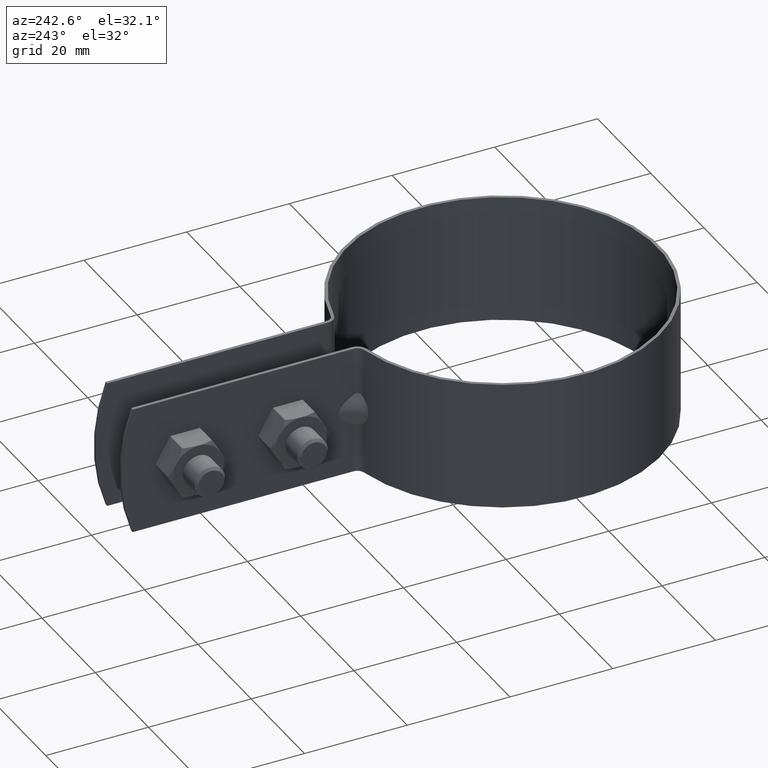
[diagram: clean part render]
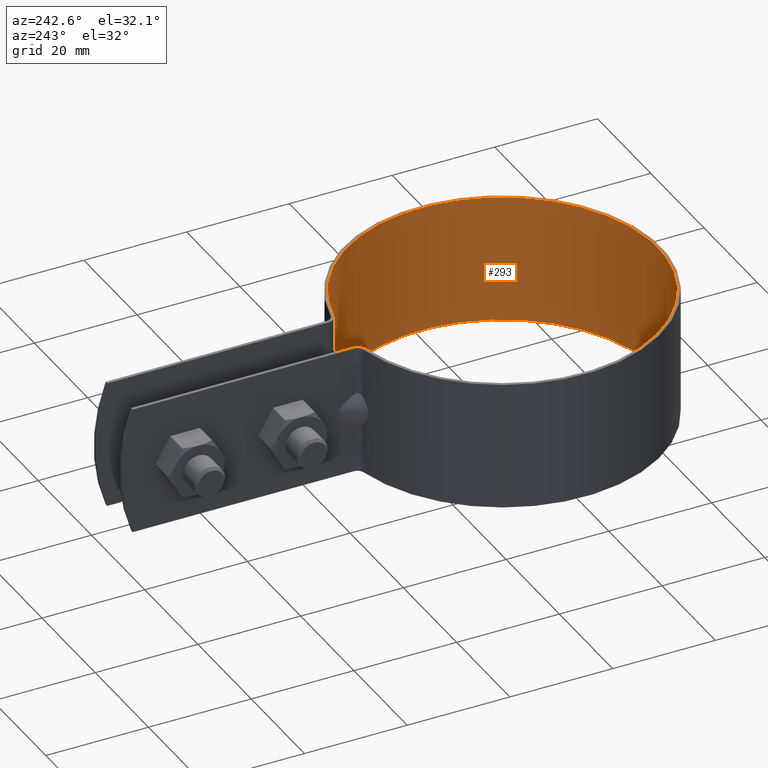
[diagram: same view with one face highlighted and labeled with its STEP entity id]
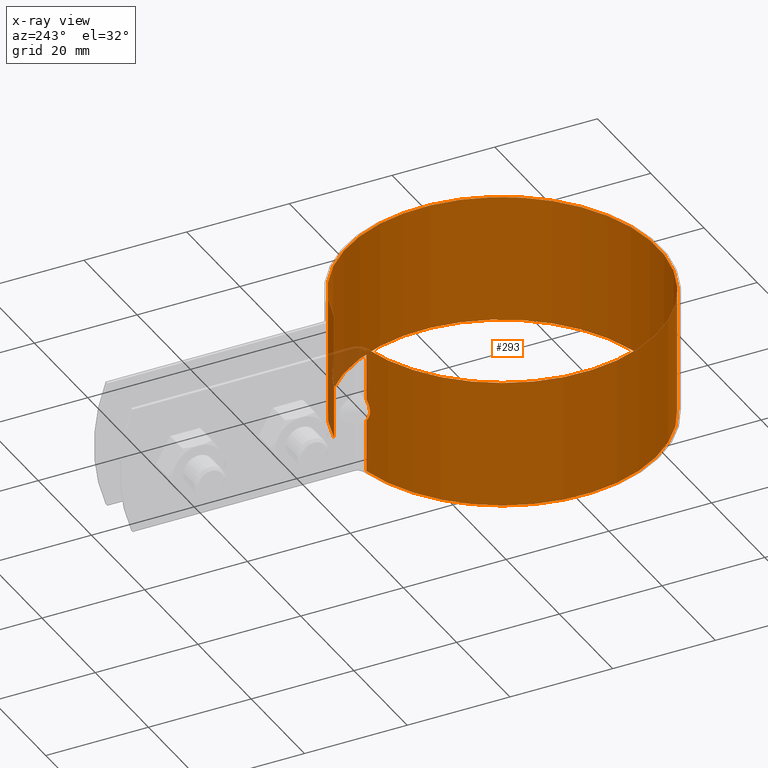
[diagram: x-ray of the same camera — body ghosted, the highlighted face saturated]
A machine part, auxiliary view. The second image highlights one B-rep face of the part: STEP entity #293.
The next image is the same camera in x-ray: the body ghosted, the highlighted face saturated — about 1% of this face is hidden behind the body in this view.
In plain terms, the highlighted cylindrical surface (partial cylindrical patch) has radius 30.25 mm, axis along (0, 0, -1).
Its self-contained STEP definition (entity closure, byte-faithful):
#293 = ADVANCED_FACE( '', ( #432 ), #433, .F. );
#432 = FACE_OUTER_BOUND( '', #664, .T. );
#433 = CYLINDRICAL_SURFACE( '', #665, 30.2500000000000 );
#664 = EDGE_LOOP( '', ( #1042, #1043, #1044, #1045, #1046, #1047, #1048, #1049, #1050, #1051, #1052, #1053 ) );
#665 = AXIS2_PLACEMENT_3D( '', #1054, #1055, #1056 );
#1042 = ORIENTED_EDGE( '', *, *, #1658, .F. );
#1043 = ORIENTED_EDGE( '', *, *, #1619, .F. );
#1044 = ORIENTED_EDGE( '', *, *, #1629, .F. );
#1045 = ORIENTED_EDGE( '', *, *, #1699, .T. );
#1046 = ORIENTED_EDGE( '', *, *, #1668, .T. );
#1047 = ORIENTED_EDGE( '', *, *, #1671, .T. );
#1048 = ORIENTED_EDGE( '', *, *, #1663, .T. );
#1049 = ORIENTED_EDGE( '', *, *, #1700, .T. );
#1050 = ORIENTED_EDGE( '', *, *, #1701, .T. );
#1051 = ORIENTED_EDGE( '', *, *, #1697, .F. );
#1052 = ORIENTED_EDGE( '', *, *, #1655, .F. );
#1053 = ORIENTED_EDGE( '', *, *, #1661, .F. );
#1054 = CARTESIAN_POINT( '', ( 0.000000000000000, 0.000000000000000, -12.5000000000000 ) );
#1055 = DIRECTION( '', ( 0.000000000000000, 0.000000000000000, -1.00000000000000 ) );
#1056 = DIRECTION( '', ( -1.00000000000000, 6.06692130572647E-017, 0.000000000000000 ) );
#1619 = EDGE_CURVE( '', #1859, #1855, #1861, .T. );
#1629 = EDGE_CURVE( '', #1879, #1859, #1881, .T. );
#1655 = EDGE_CURVE( '', #1923, #1926, #1927, .F. );
#1658 = EDGE_CURVE( '', #1855, #1931, #1932, .F. );
#1661 = EDGE_CURVE( '', #1931, #1923, #1936, .T. );
#1663 = EDGE_CURVE( '', #1938, #1939, #1940, .F. );
#1668 = EDGE_CURVE( '', #1949, #1946, #1950, .F. );
#1671 = EDGE_CURVE( '', #1946, #1938, #1954, .T. );
#1697 = EDGE_CURVE( '', #1926, #1996, #1997, .T. );
#1699 = EDGE_CURVE( '', #1879, #1949, #1999, .T. );
#1700 = EDGE_CURVE( '', #1939, #2000, #2001, .T. );
#1701 = EDGE_CURVE( '', #2000, #1996, #2002, .T. );
#1855 = VERTEX_POINT( '', #2255 );
#1859 = VERTEX_POINT( '', #2260 );
#1861 = LINE( '', #2262, #2263 );
#1879 = VERTEX_POINT( '', #2286 );
#1881 = CIRCLE( '', #2288, 30.2500000000000 );
#1923 = VERTEX_POINT( '', #2372 );
#1926 = VERTEX_POINT( '', #2376 );
#1927 = ELLIPSE( '', #2377, 52.7392655675382, 30.2500000000000 );
#1931 = VERTEX_POINT( '', #2382 );
#1932 = ELLIPSE( '', #2383, 52.7392655675382, 30.2500000000000 );
#1936 = B_SPLINE_CURVE_WITH_KNOTS( '', 3, ( #2389, #2390, #2391, #2392, #2393, #2394, #2395, #2396, #2397, #2398, #2399, #2400, #2401, #2402 ), .UNSPECIFIED., .F., .F., ( 4, 2, 2, 2, 2, 2, 4 ), ( 4.51215715110212E-018, 0.00107279046505789, 0.00160918569758683, 0.00214558093011578, 0.00268197616264472, 0.00321837139517366, 0.00429116186023155 ), .UNSPECIFIED. );
#1938 = VERTEX_POINT( '', #2404 );
#1939 = VERTEX_POINT( '', #2405 );
#1940 = ELLIPSE( '', #2406, 52.7392655675382, 30.2500000000000 );
#1946 = VERTEX_POINT( '', #2414 );
#1949 = VERTEX_POINT( '', #2418 );
#1950 = ELLIPSE( '', #2419, 52.7392655675382, 30.2500000000000 );
#1954 = B_SPLINE_CURVE_WITH_KNOTS( '', 3, ( #2424, #2425, #2426, #2427, #2428, #2429, #2430, #2431, #2432, #2433, #2434, #2435, #2436, #2437 ), .UNSPECIFIED., .F., .F., ( 4, 2, 2, 2, 2, 2, 4 ), ( 4.51215715110212E-018, 0.00107279046505789, 0.00160918569758683, 0.00214558093011578, 0.00268197616264472, 0.00321837139517366, 0.00429116186023155 ), .UNSPECIFIED. );
#1996 = VERTEX_POINT( '', #2489 );
#1997 = LINE( '', #2490, #2491 );
#1999 = LINE( '', #2493, #2494 );
#2000 = VERTEX_POINT( '', #2495 );
#2001 = LINE( '', #2496, #2497 );
#2002 = CIRCLE( '', #2498, 30.2500000000000 );
#2255 = CARTESIAN_POINT( '', ( 6.09689922480621, 29.6292139592423, -2.10468024544602 ) );
#2260 = CARTESIAN_POINT( '', ( 6.09689922480621, 29.6292139592423, -12.5000000000000 ) );
#2262 = CARTESIAN_POINT( '', ( 6.09689922480621, 29.6292139592423, -12.5000000000000 ) );
#2263 = VECTOR( '', #2953, 1000.00000000000 );
#2286 = CARTESIAN_POINT( '', ( -6.09689922480620, 29.6292139592423, -12.5000000000000 ) );
#2288 = AXIS2_PLACEMENT_3D( '', #2971, #2972, #2973 );
#2372 = CARTESIAN_POINT( '', ( 6.23273864625334, 29.6009369609731, 1.95015988359352 ) );
#2376 = CARTESIAN_POINT( '', ( 6.09689922480621, 29.6292139592423, 2.10468024544595 ) );
#2377 = AXIS2_PLACEMENT_3D( '', #3017, #3018, #3019 );
#2382 = CARTESIAN_POINT( '', ( 6.23273864625333, 29.6009369609730, -1.95015988359357 ) );
#2383 = AXIS2_PLACEMENT_3D( '', #3024, #3025, #3026 );
#2389 = CARTESIAN_POINT( '', ( 6.23273864625336, 29.6009369609730, -1.95015988359358 ) );
#2390 = CARTESIAN_POINT( '', ( 6.46945246368366, 29.5510947765873, -1.68126006857596 ) );
#2391 = CARTESIAN_POINT( '', ( 6.66342274021514, 29.5073060485315, -1.38135406812216 ) );
#2392 = CARTESIAN_POINT( '', ( 6.86915528258810, 29.4598397639536, -0.882539563165482 ) );
#2393 = CARTESIAN_POINT( '', ( 6.92158780289351, 29.4475035263022, -0.712325264936519 ) );
#2394 = CARTESIAN_POINT( '', ( 6.99288092056508, 29.4306550738433, -0.363666695912886 ) );
#2395 = CARTESIAN_POINT( '', ( 7.01171857601597, 29.4261499801344, -0.183286719302342 ) );
#2396 = CARTESIAN_POINT( '', ( 7.01212016438376, 29.4260542860040, 0.177359188099024 ) );
#2397 = CARTESIAN_POINT( '', ( 6.99410284721404, 29.4303643324806, 0.355142293771740 ) );
#2398 = CARTESIAN_POINT( '', ( 6.92340462671294, 29.4470760476276, 0.705882173023555 ) );
#2399 = CARTESIAN_POINT( '', ( 6.86991102798335, 29.4596621363406, 0.880143481340352 ) );
#2400 = CARTESIAN_POINT( '', ( 6.66590101153241, 29.5067406973973, 1.37645639252584 ) );
#2401 = CARTESIAN_POINT( '', ( 6.46973845000675, 29.5510345596418, 1.68093519666851 ) );
#2402 = CARTESIAN_POINT( '', ( 6.23273864625335, 29.6009369609730, 1.95015988359353 ) );
#2404 = CARTESIAN_POINT( '', ( -6.23273864625334, 29.6009369609731, 1.95015988359352 ) );
#2405 = CARTESIAN_POINT( '', ( -6.09689922480620, 29.6292139592423, 2.10468024544596 ) );
#2406 = AXIS2_PLACEMENT_3D( '', #3032, #3033, #3034 );
#2414 = CARTESIAN_POINT( '', ( -6.23273864625333, 29.6009369609730, -1.95015988359357 ) );
#2418 = CARTESIAN_POINT( '', ( -6.09689922480621, 29.6292139592423, -2.10468024544602 ) );
#2419 = AXIS2_PLACEMENT_3D( '', #3041, #3042, #3043 );
#2424 = CARTESIAN_POINT( '', ( -6.23273864625336, 29.6009369609730, -1.95015988359358 ) );
#2425 = CARTESIAN_POINT( '', ( -6.46945246368366, 29.5510947765873, -1.68126006857596 ) );
#2426 = CARTESIAN_POINT( '', ( -6.66342274021514, 29.5073060485315, -1.38135406812216 ) );
#2427 = CARTESIAN_POINT( '', ( -6.86915528258810, 29.4598397639536, -0.882539563165482 ) );
#2428 = CARTESIAN_POINT( '', ( -6.92158780289351, 29.4475035263022, -0.712325264936519 ) );
#2429 = CARTESIAN_POINT( '', ( -6.99288092056508, 29.4306550738433, -0.363666695912886 ) );
#2430 = CARTESIAN_POINT( '', ( -7.01171857601597, 29.4261499801344, -0.183286719302342 ) );
#2431 = CARTESIAN_POINT( '', ( -7.01212016438376, 29.4260542860040, 0.177359188099024 ) );
#2432 = CARTESIAN_POINT( '', ( -6.99410284721404, 29.4303643324806, 0.355142293771740 ) );
#2433 = CARTESIAN_POINT( '', ( -6.92340462671294, 29.4470760476276, 0.705882173023555 ) );
#2434 = CARTESIAN_POINT( '', ( -6.86991102798335, 29.4596621363406, 0.880143481340352 ) );
#2435 = CARTESIAN_POINT( '', ( -6.66590101153241, 29.5067406973973, 1.37645639252584 ) );
#2436 = CARTESIAN_POINT( '', ( -6.46973845000675, 29.5510345596418, 1.68093519666851 ) );
#2437 = CARTESIAN_POINT( '', ( -6.23273864625335, 29.6009369609730, 1.95015988359353 ) );
#2489 = CARTESIAN_POINT( '', ( 6.09689922480621, 29.6292139592423, 12.5000000000000 ) );
#2490 = CARTESIAN_POINT( '', ( 6.09689922480621, 29.6292139592423, -12.5000000000000 ) );
#2491 = VECTOR( '', #3103, 1000.00000000000 );
#2493 = CARTESIAN_POINT( '', ( -6.09689922480620, 29.6292139592423, -12.5000000000000 ) );
#2494 = VECTOR( '', #3107, 1000.00000000000 );
#2495 = CARTESIAN_POINT( '', ( -6.09689922480620, 29.6292139592423, 12.5000000000000 ) );
#2496 = CARTESIAN_POINT( '', ( -6.09689922480620, 29.6292139592423, -12.5000000000000 ) );
#2497 = VECTOR( '', #3108, 1000.00000000000 );
#2498 = AXIS2_PLACEMENT_3D( '', #3109, #3110, #3111 );
#2953 = DIRECTION( '', ( 0.000000000000000, 0.000000000000000, 1.00000000000000 ) );
#2971 = CARTESIAN_POINT( '', ( 0.000000000000000, 0.000000000000000, -12.5000000000000 ) );
#2972 = DIRECTION( '', ( 0.000000000000000, 0.000000000000000, 1.00000000000000 ) );
#2973 = DIRECTION( '', ( 1.00000000000000, -6.06692130572647E-017, 0.000000000000000 ) );
#3017 = CARTESIAN_POINT( '', ( 0.000000000000000, 0.000000000000000, 29.0734825053441 ) );
#3018 = DIRECTION( '', ( -0.729869815763731, -0.371887245949431, -0.573576436351046 ) );
#3019 = DIRECTION( '', ( -0.511060346909496, -0.260398252977840, 0.819152044288992 ) );
#3024 = CARTESIAN_POINT( '', ( 0.000000000000000, 0.000000000000000, -29.0734825053441 ) );
#3025 = DIRECTION( '', ( -0.729869815763730, -0.371887245949432, 0.573576436351046 ) );
#3026 = DIRECTION( '', ( 0.511060346909496, 0.260398252977841, 0.819152044288992 ) );
#3032 = CARTESIAN_POINT( '', ( 0.000000000000000, 0.000000000000000, 29.0734825053441 ) );
#3033 = DIRECTION( '', ( -0.729869815763731, 0.371887245949431, 0.573576436351046 ) );
#3034 = DIRECTION( '', ( 0.511060346909496, -0.260398252977840, 0.819152044288992 ) );
#3041 = CARTESIAN_POINT( '', ( 0.000000000000000, 0.000000000000000, -29.0734825053441 ) );
#3042 = DIRECTION( '', ( -0.729869815763730, 0.371887245949432, -0.573576436351046 ) );
#3043 = DIRECTION( '', ( -0.511060346909496, 0.260398252977841, 0.819152044288992 ) );
#3103 = DIRECTION( '', ( 0.000000000000000, 0.000000000000000, 1.00000000000000 ) );
#3107 = DIRECTION( '', ( 0.000000000000000, 0.000000000000000, 1.00000000000000 ) );
#3108 = DIRECTION( '', ( 0.000000000000000, 0.000000000000000, 1.00000000000000 ) );
#3109 = CARTESIAN_POINT( '', ( 0.000000000000000, 0.000000000000000, 12.5000000000000 ) );
#3110 = DIRECTION( '', ( 0.000000000000000, 0.000000000000000, 1.00000000000000 ) );
#3111 = DIRECTION( '', ( 1.00000000000000, -6.06692130572647E-017, 0.000000000000000 ) );